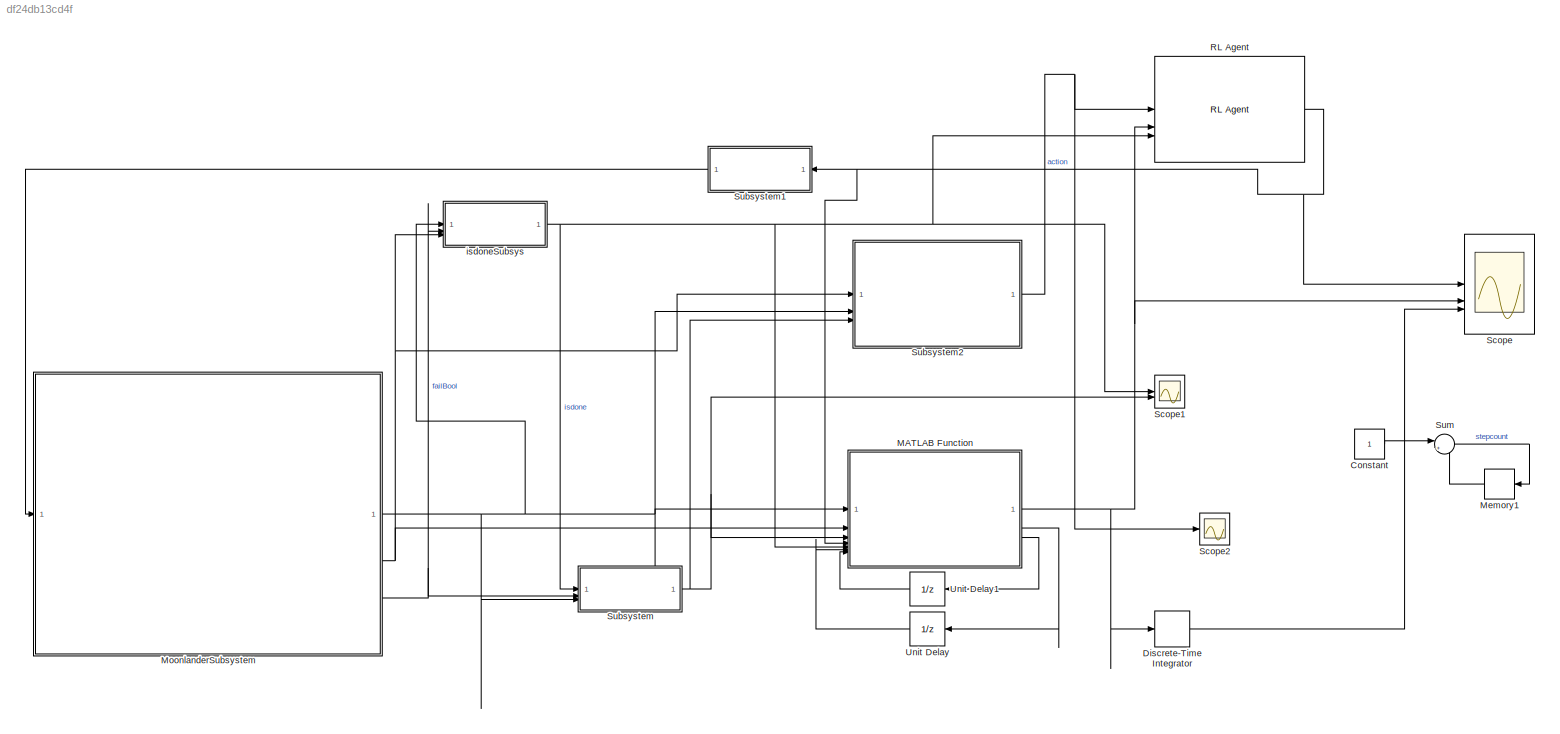
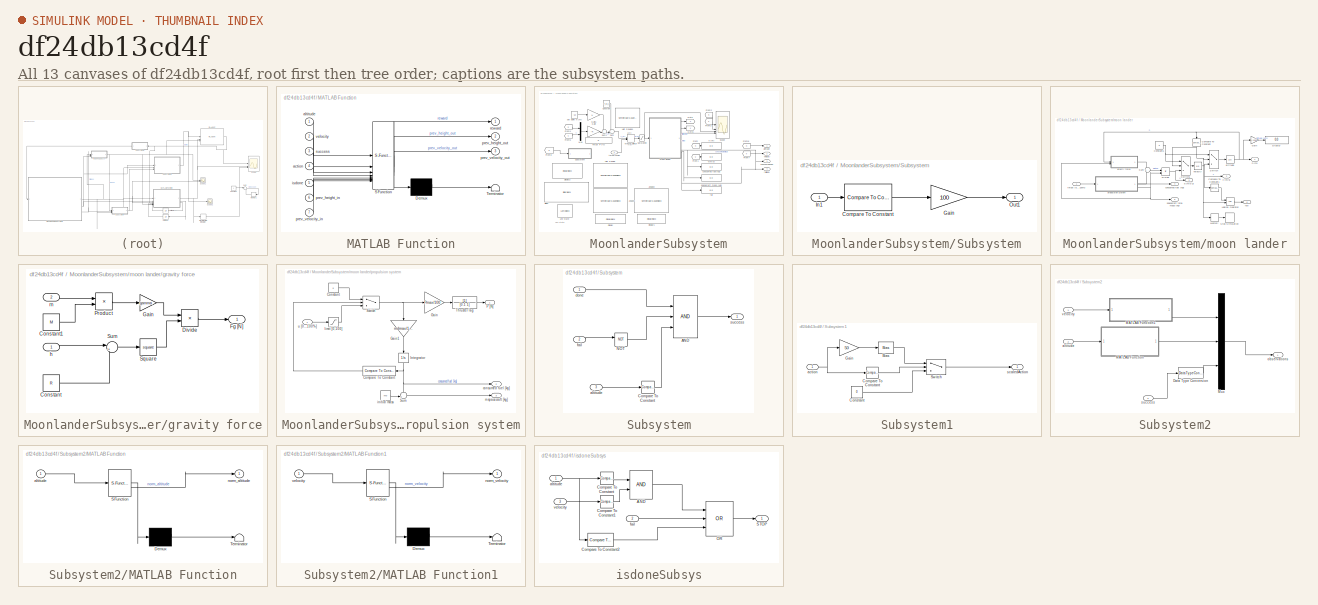
[diagram: thumbnail index - all 13 canvases of the model, root first then tree order]
MODEL slx_df24db13cd4f
KIND model
CONFIG AbsTol = auto
CONFIG EnableMultiTasking = off
CONFIG FixedStep = 0.1
CONFIG MaxStep = auto
CONFIG MinStep = auto
CONFIG RelTol = 1e-3
CONFIG SampleTimeConstraint = Unconstrained
CONFIG SolverName = ode2
CONFIG StartTime = 0.0
CONFIG StopTime = Tf
BLOCK [Constant] Constant
BLOCK [DiscreteIntegrator] Discrete-Time Integrator
  ICPrevOutput = DiscIntNeverNeededParam
  ICPrevScaledInput = DiscIntNeverNeededParam
  InitialConditionSetting = Auto
  SampleTime = -1
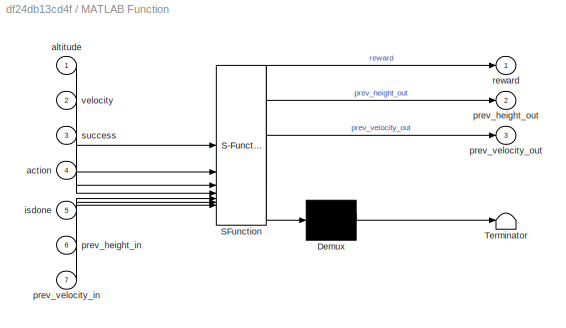
BLOCK [SubSystem] MATLAB Function
  ErrorFcn = Stateflow.Translate.translate
  PermitHierarchicalResolution = ExplicitOnly
  SFBlockType = MATLAB Function
  TreatAsAtomicUnit = on
BLOCK [Demux] MATLAB Function/ Demux 
  Outputs = 1
BLOCK [S-Function] MATLAB Function/ SFunction 
  EnableBusSupport = off
  FunctionName = sf_sfun
  PortCounts = [7 4]
  SFcnIsStateOwnerBlock = off
  SFunctionDeploymentMode = off
  Tag = Stateflow S-Function 2
BLOCK [Terminator] MATLAB Function/ Terminator 
BLOCK [Inport] MATLAB Function/action
  Port = 4
BLOCK [Inport] MATLAB Function/altitude
BLOCK [Inport] MATLAB Function/isdone
  Port = 5
BLOCK [Inport] MATLAB Function/prev_height_in
  Port = 6
BLOCK [Outport] MATLAB Function/prev_height_out
  Port = 2
BLOCK [Inport] MATLAB Function/prev_velocity_in
  Port = 7
BLOCK [Outport] MATLAB Function/prev_velocity_out
  Port = 3
BLOCK [Outport] MATLAB Function/reward
BLOCK [Inport] MATLAB Function/success
  Port = 3
BLOCK [Inport] MATLAB Function/velocity
  Port = 2
BLOCK [Memory] Memory1
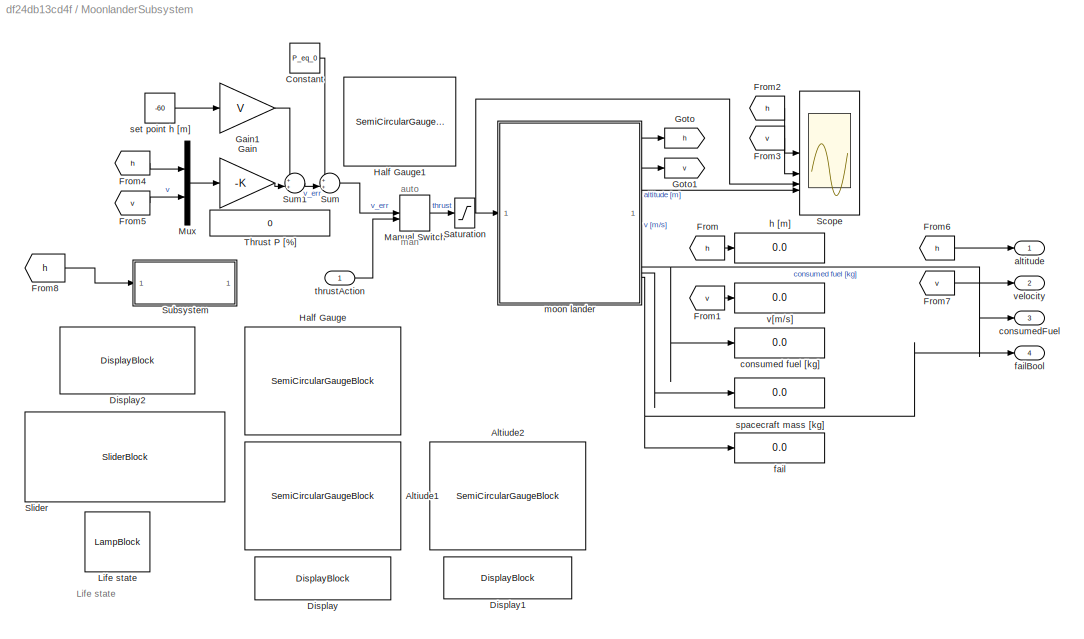
BLOCK [SubSystem] MoonlanderSubsystem
BLOCK [SemiCircularGaugeBlock] MoonlanderSubsystem/Altiude1
  ScaleMax = 200
BLOCK [SemiCircularGaugeBlock] MoonlanderSubsystem/Altiude2
  ScaleMax = 20
  ScaleMin = -120
BLOCK [Constant] MoonlanderSubsystem/Constant
  Value = P_eq_0
BLOCK [DisplayBlock] MoonlanderSubsystem/Display
  Format = Integer
  GridColor = [0.502, 0.502, 0.502]
  LabelPosition = Bottom
  Transparency = 1
BLOCK [DisplayBlock] MoonlanderSubsystem/Display1
  Format = Integer
  GridColor = [0.502, 0.502, 0.502]
  LabelPosition = Bottom
  Transparency = 1
BLOCK [DisplayBlock] MoonlanderSubsystem/Display2
  Format = Integer
  GridColor = [0.502, 0.502, 0.502]
  LabelPosition = Bottom
  Transparency = 1
BLOCK [From] MoonlanderSubsystem/From
  GotoTag = h
BLOCK [From] MoonlanderSubsystem/From1
  GotoTag = v
BLOCK [From] MoonlanderSubsystem/From2
  GotoTag = h
BLOCK [From] MoonlanderSubsystem/From3
  GotoTag = v
BLOCK [From] MoonlanderSubsystem/From4
  GotoTag = h
BLOCK [From] MoonlanderSubsystem/From5
  GotoTag = v
BLOCK [From] MoonlanderSubsystem/From6
  GotoTag = h
BLOCK [From] MoonlanderSubsystem/From7
  GotoTag = v
BLOCK [From] MoonlanderSubsystem/From8
  GotoTag = h
BLOCK [Gain] MoonlanderSubsystem/Gain
  Gain = -K
  Multiplication = Matrix(K*u)
BLOCK [Gain] MoonlanderSubsystem/Gain1
  Gain = V
  Multiplication = Matrix(K*u)
BLOCK [Goto] MoonlanderSubsystem/Goto
  GotoTag = h
BLOCK [Goto] MoonlanderSubsystem/Goto1
  GotoTag = v
BLOCK [SemiCircularGaugeBlock] MoonlanderSubsystem/Half Gauge
  ScaleMax = 10
BLOCK [SemiCircularGaugeBlock] MoonlanderSubsystem/Half Gauge1
BLOCK [LampBlock] MoonlanderSubsystem/Life state
  DefaultColor = [150.0, 150.0, 150.0]
  LabelPosition = Hide
BLOCK [ManualSwitch] MoonlanderSubsystem/Manual Switch
  CurrentSetting = 0
BLOCK [Mux] MoonlanderSubsystem/Mux
  DisplayOption = bar
  Inputs = 2
BLOCK [Saturate] MoonlanderSubsystem/Saturation
  LowerLimit = 0
  UpperLimit = 100
BLOCK [Scope] MoonlanderSubsystem/Scope
  ActiveDisplayYMaximum = 11249.997761879704
  ActiveDisplayYMinimum = -1249.97985691733
  Floating = off
  GraphicalSettings = {"Style":{"BackgroundColor":[1,1,1],"AxesColor":[1,1,1],"LabelsColor":[0,0,0],"PreserveColors":false,"Visible":[true,true,true,true,true,true,true],"LineStyle":["-","-","-","-","-","-","-"],"LineWidth":[2,2,2,1,1.5,1.5,1.5],"BarWidth":[0.9,0.9,0.9,0.9,0.9,0.9,0.9],"LineColor":[[0,0.4980392156862745,0],[0,0,1],[1,0,0],[0.8509803921568627,0.3254901960784314,0.09803921568627451],[0.5215686274509804,0...<+3414ch>
  LayoutDimensionsString = [2 2]
  MultipleDisplayCache = [{"MaxYLimMag":10,"MaxYLimReal":11249.997761879704,"MinYLimMag":0,"MinYLimReal":-1249.97985691733,"PlotAsMagnitudePhase":false,"ShowGrid":true,"ShowLegend":false,"Title":"altitude","YLabel":"m"},{"MaxYLimMag":10,"MaxYLimReal":18.097537681998762,"MinYLimMag":0,"MinYLimReal":-162.8778391379889,"PlotAsMagnitudePhase":false,"ShowGrid":true,"ShowLegend":false,"Title":"velocity","YLabel":"m/s"},{"MaxYLi...<+381ch>
  NumInputPorts = 4
  ScopeFrameLocation = window
  TimeSpan = 80
  TimeSpanOverrunAction = Scroll
  Title = altitude
  Visible = on
  WasSavedAsWebScope = on
  WindowPosition = [994.000000,1.000000,927.000000,1011.000000,]
  YLabel = m
BLOCK [SliderBlock] MoonlanderSubsystem/Slider
BLOCK [SubSystem] MoonlanderSubsystem/Subsystem
BLOCK [Reference] MoonlanderSubsystem/Subsystem/Compare To Constant  REF=simulink/Logic and Bit
Operations/Compare
To Constant
  SourceBlock = simulink/Logic and Bit\nOperations/Compare\nTo Constant
  SourceType = Compare To Constant
BLOCK [Gain] MoonlanderSubsystem/Subsystem/Gain
  Gain = 100
BLOCK [Inport] MoonlanderSubsystem/Subsystem/In1
BLOCK [Outport] MoonlanderSubsystem/Subsystem/Out1
BLOCK [Sum] MoonlanderSubsystem/Sum
  Inputs = ++|
BLOCK [Sum] MoonlanderSubsystem/Sum1
  Inputs = ++|
BLOCK [Constant] MoonlanderSubsystem/Thrust P [%]
  Value = 0
BLOCK [Outport] MoonlanderSubsystem/altitude
BLOCK [Display] MoonlanderSubsystem/consumed fuel [kg]
  Decimation = 1
BLOCK [Outport] MoonlanderSubsystem/consumedFuel
  Port = 3
BLOCK [Display] MoonlanderSubsystem/fail
  Decimation = 1
BLOCK [Outport] MoonlanderSubsystem/failBool
  Port = 4
BLOCK [Display] MoonlanderSubsystem/h [m]
  Decimation = 1
BLOCK [SubSystem] MoonlanderSubsystem/moon lander
BLOCK [Reference] MoonlanderSubsystem/moon lander/Compare To Constant  REF=simulink/Logic and Bit
Operations/Compare
To Constant
  NameLocation = left
  SourceBlock = simulink/Logic and Bit\nOperations/Compare\nTo Constant
  SourceType = Compare To Constant
BLOCK [Reference] MoonlanderSubsystem/moon lander/Compare To Constant1  REF=simulink/Logic and Bit
Operations/Compare
To Constant
  SourceBlock = simulink/Logic and Bit\nOperations/Compare\nTo Constant
  SourceType = Compare To Constant
BLOCK [Constant] MoonlanderSubsystem/moon lander/Constant1
  Value = 0
BLOCK [Display] MoonlanderSubsystem/moon lander/Display
  Decimation = 1
BLOCK [Product] MoonlanderSubsystem/moon lander/Divide
  Inputs = */
BLOCK [Gain] MoonlanderSubsystem/moon lander/Gain
  Gain = 1/1000
BLOCK [Logic] MoonlanderSubsystem/moon lander/Logical Operator
  AllPortsSameDT = off
  OutDataTypeStr = boolean
BLOCK [Memory] MoonlanderSubsystem/moon lander/Memory
  Commented = on
BLOCK [Stop] MoonlanderSubsystem/moon lander/Stop Simulation
  Commented = on
BLOCK [Sum] MoonlanderSubsystem/moon lander/Sum
  Inputs = -+
BLOCK [Switch] MoonlanderSubsystem/moon lander/Switch
  Criteria = u2 > Threshold
  InputSameDT = off
  SaturateOnIntegerOverflow = off
BLOCK [Switch] MoonlanderSubsystem/moon lander/Switch1
  Criteria = u2 > Threshold
  InputSameDT = off
  SaturateOnIntegerOverflow = off
BLOCK [Outport] MoonlanderSubsystem/moon lander/a [m//s^2]
  Port = 3
BLOCK [Integrator] MoonlanderSubsystem/moon lander/altitude
  InitialCondition = h0
BLOCK [Outport] MoonlanderSubsystem/moon lander/consumed fuel [kg]
  Port = 4
BLOCK [Outport] MoonlanderSubsystem/moon lander/fail
  Port = 6
BLOCK [SubSystem] MoonlanderSubsystem/moon lander/gravity force
BLOCK [Constant] MoonlanderSubsystem/moon lander/gravity force/Constant
  Value = R
BLOCK [Constant] MoonlanderSubsystem/moon lander/gravity force/Constant1
  Value = M
BLOCK [Product] MoonlanderSubsystem/moon lander/gravity force/Divide
  Inputs = */
BLOCK [Outport] MoonlanderSubsystem/moon lander/gravity force/Fg [N]
BLOCK [Gain] MoonlanderSubsystem/moon lander/gravity force/Gain
  Gain = gamma
BLOCK [Product] MoonlanderSubsystem/moon lander/gravity force/Product
BLOCK [Math] MoonlanderSubsystem/moon lander/gravity force/Square
  Operator = square
BLOCK [Sum] MoonlanderSubsystem/moon lander/gravity force/Sum
  Inputs = |++
BLOCK [Inport] MoonlanderSubsystem/moon lander/gravity force/h
BLOCK [Inport] MoonlanderSubsystem/moon lander/gravity force/m
  Port = 2
BLOCK [Outport] MoonlanderSubsystem/moon lander/h [m]
BLOCK [SubSystem] MoonlanderSubsystem/moon lander/propulsion system
BLOCK [Reference] MoonlanderSubsystem/moon lander/propulsion system/Compare To Constant  REF=simulink/Logic and Bit
Operations/Compare
To Constant
  SourceBlock = simulink/Logic and Bit\nOperations/Compare\nTo Constant
  SourceType = Compare To Constant
BLOCK [Constant] MoonlanderSubsystem/moon lander/propulsion system/Constant
  Value = 0
BLOCK [Gain] MoonlanderSubsystem/moon lander/propulsion system/Gain
  Gain = Pmax/100
BLOCK [Gain] MoonlanderSubsystem/moon lander/propulsion system/Gain1
  Gain = mdmax/100
  NameLocation = left
BLOCK [Integrator] MoonlanderSubsystem/moon lander/propulsion system/Integrator
  LowerSaturationLimit = 0
  NameLocation = left
  UpperSaturationLimit = m0_fuel
BLOCK [Outport] MoonlanderSubsystem/moon lander/propulsion system/P [N]
BLOCK [Sum] MoonlanderSubsystem/moon lander/propulsion system/Sum
  Inputs = -+|
BLOCK [Switch] MoonlanderSubsystem/moon lander/propulsion system/Switch
  Criteria = u2 > Threshold
  InputSameDT = off
  SaturateOnIntegerOverflow = off
BLOCK [TransferFcn] MoonlanderSubsystem/moon lander/propulsion system/Thruster lag
  Denominator = [0.1 1]
BLOCK [Outport] MoonlanderSubsystem/moon lander/propulsion system/consumed fuel [kg]
  Port = 2
BLOCK [Constant] MoonlanderSubsystem/moon lander/propulsion system/initial mass
  Value = m0
BLOCK [Saturate] MoonlanderSubsystem/moon lander/propulsion system/limit [0,100]
  LowerLimit = 0
  UpperLimit = 100
BLOCK [Outport] MoonlanderSubsystem/moon lander/propulsion system/m spacecraft [kg]
  Port = 3
BLOCK [Inport] MoonlanderSubsystem/moon lander/propulsion system/u [0...100%]
BLOCK [Outport] MoonlanderSubsystem/moon lander/spacecraft total mass [kg]
  Port = 5
BLOCK [Inport] MoonlanderSubsystem/moon lander/thrust [0...100%]
BLOCK [Outport] MoonlanderSubsystem/moon lander/v [m//s]
  Port = 2
BLOCK [Integrator] MoonlanderSubsystem/moon lander/velocity
BLOCK [Constant] MoonlanderSubsystem/set point h [m]
  Value = -60
BLOCK [Display] MoonlanderSubsystem/spacecraft mass [kg]
  Decimation = 1
BLOCK [Inport] MoonlanderSubsystem/thrustAction
BLOCK [Display] MoonlanderSubsystem/v[m//s]
  Decimation = 1
BLOCK [Outport] MoonlanderSubsystem/velocity
  Port = 2
BLOCK [Reference] RL Agent  REF=rllib/RL Agent
  SourceBlock = rllib/RL Agent
  SourceType = RL Agent
BLOCK [Scope] Scope
  ActiveDisplayYMaximum = 1.217665895819664
  ActiveDisplayYMinimum = -1.2345805019140244
  DataLogging = on
  DataLoggingVariableName = ScopeData1
  Floating = off
  GraphicalSettings = {"Style":{"BackgroundColor":[0.12941176470588237,0.12941176470588237,0.12941176470588237],"AxesColor":[0.07058823529411765,0.07058823529411765,0.07058823529411765],"LabelsColor":[0.8509803921568627,0.8509803921568627,0.8509803921568627],"PreserveColors":false,"Visible":[true,true,true,true,true,true,true],"LineStyle":["-","-","-","-","-","-","-"],"LineWidth":[1.5,1.5,1.5,1.5,1.5,1.5,1.5],"BarWidth...<+3736ch>
  LayoutDimensionsString = [2,2]
  MultipleDisplayCache = [{"MaxYLimMag":10,"MaxYLimReal":1.217665895819664,"MinYLimMag":0,"MinYLimReal":-1.2345805019140244,"PlotAsMagnitudePhase":false,"ShowGrid":true,"ShowLegend":true,"Title":"%<SignalLabel>","YLabel":""},{"MaxYLimMag":10,"MaxYLimReal":14.738737198603083,"MinYLimMag":0,"MinYLimReal":-35.718039686775924,"PlotAsMagnitudePhase":false,"ShowGrid":true,"ShowLegend":true,"Title":"%<SignalLabel>","YLabel":""},...<+396ch>
  NumInputPorts = 3
  OpenAtSimulationStart = on
  ScopeFrameLocation = window
  ShowLegend = on
  Visible = on
  WasSavedAsWebScope = on
  WindowPosition = [67.000000,197.000000,1012.000000,804.000000,]
BLOCK [Scope] Scope1
  ActiveDisplayYMaximum = 1
  ActiveDisplayYMinimum = -1
  DataLoggingVariableName = ScopeData2
  Floating = off
  GraphicalSettings = {"AxesScalingProperties":{"AlignXAxis":"Center","AlignYAxis":"Center","AutoScaleXAxisLimits":false,"AxesScaling":"Manual","AxesScalingNumUpdates":10,"ExpandOnly":true,"ScaleAxesLimitsAtStop":false,"XAxisDataRange":100,"YAxisDataRange":80},"DisplayProperties":{"ColorOrder":["auto","auto","auto","auto","auto","auto","auto","auto","auto","auto","auto","auto","auto","auto","auto","auto","auto","auto",...<+2272ch>
  LayoutDimensionsString = [2,1]
  MultipleDisplayCache = [{"MaxYLimMag":1,"MaxYLimReal":1,"MinYLimMag":0,"MinYLimReal":-1,"PlotAsMagnitudePhase":false,"ShowGrid":true,"ShowLegend":false,"Title":"%<SignalLabel>","YLabel":""},{"MaxYLimMag":1,"MaxYLimReal":0.95171276563709828,"MinYLimMag":0,"MinYLimReal":-0.61533956729981942,"PlotAsMagnitudePhase":false,"ShowGrid":true,"ShowLegend":false,"Title":"%<SignalLabel>","YLabel":""}]
  NumInputPorts = 2
  ScopeFrameLocation = window
  WasSavedAsWebScope = on
  WindowPosition = [680.000000,135.000000,612.000000,615.000000,]
BLOCK [Scope] Scope2
  ActiveDisplayYMaximum = 0.49992743023604069
  ActiveDisplayYMinimum = -1.1660135387910342
  DataLoggingVariableName = ScopeData3
  Floating = off
  GraphicalSettings = {"Style":{"BackgroundColor":[0.12941176470588237,0.12941176470588237,0.12941176470588237],"AxesColor":[0.07058823529411765,0.07058823529411765,0.07058823529411765],"LabelsColor":[0.8509803921568627,0.8509803921568627,0.8509803921568627],"PreserveColors":false,"Visible":[true,true,true],"LineStyle":["-","-","-"],"LineWidth":[1.5,1.5,1.5],"BarWidth":[0.9,0.9,0.9],"LineColor":["auto","auto","auto"],"...<+2125ch>
  MultipleDisplayCache = [{"MaxYLimMag":1.1660135387910342,"MaxYLimReal":0.49992743023604069,"MinYLimMag":0,"MinYLimReal":-1.1660135387910342,"PlotAsMagnitudePhase":false,"ShowGrid":true,"ShowLegend":false,"Title":"%<SignalLabel>","YLabel":""}]
  NumInputPorts = 1
  ScopeFrameLocation = window
  WasSavedAsWebScope = on
  WindowPosition = [680.000000,330.000000,560.000000,420.000000,]
BLOCK [SubSystem] Subsystem
BLOCK [Logic] Subsystem/AND
  AllPortsSameDT = off
  IconShape = distinctive
  Inputs = 3
  OutDataTypeStr = boolean
BLOCK [Reference] Subsystem/Compare To Constant  REF=simulink/Logic and Bit
Operations/Compare
To Constant
  SourceBlock = simulink/Logic and Bit\nOperations/Compare\nTo Constant
  SourceType = Compare To Constant
BLOCK [Logic] Subsystem/NOT
  AllPortsSameDT = off
  IconShape = distinctive
  Operator = NOT
  OutDataTypeStr = boolean
BLOCK [Inport] Subsystem/altitude
  Port = 3
BLOCK [Inport] Subsystem/done
BLOCK [Inport] Subsystem/fail
  Port = 2
BLOCK [Outport] Subsystem/success
BLOCK [SubSystem] Subsystem1
BLOCK [Bias] Subsystem1/Bias
  Bias = 50
  SaturateOnIntegerOverflow = off
BLOCK [Reference] Subsystem1/Compare To Constant  REF=simulink/Logic and Bit
Operations/Compare
To Constant
  SourceBlock = simulink/Logic and Bit\nOperations/Compare\nTo Constant
  SourceType = Compare To Constant
BLOCK [Constant] Subsystem1/Constant
  Value = 0
BLOCK [Gain] Subsystem1/Gain
  Gain = 50
BLOCK [Switch] Subsystem1/Switch
  Criteria = u2 > Threshold
  InputSameDT = off
  SaturateOnIntegerOverflow = off
BLOCK [Inport] Subsystem1/action
BLOCK [Outport] Subsystem1/scaledAction
BLOCK [SubSystem] Subsystem2
BLOCK [DataTypeConversion] Subsystem2/Data Type Conversion
  RndMeth = Floor
  SaturateOnIntegerOverflow = off
BLOCK [SubSystem] Subsystem2/MATLAB Function
  ErrorFcn = Stateflow.Translate.translate
  PermitHierarchicalResolution = ExplicitOnly
  SFBlockType = MATLAB Function
  TreatAsAtomicUnit = on
BLOCK [Demux] Subsystem2/MATLAB Function/ Demux 
  Outputs = 1
BLOCK [S-Function] Subsystem2/MATLAB Function/ SFunction 
  EnableBusSupport = off
  FunctionName = sf_sfun
  PortCounts = [1 2]
  SFcnIsStateOwnerBlock = off
  SFunctionDeploymentMode = off
  Tag = Stateflow S-Function 1
BLOCK [Terminator] Subsystem2/MATLAB Function/ Terminator 
BLOCK [Inport] Subsystem2/MATLAB Function/altitude
BLOCK [Outport] Subsystem2/MATLAB Function/norm_altitude
BLOCK [SubSystem] Subsystem2/MATLAB Function1
  ErrorFcn = Stateflow.Translate.translate
  PermitHierarchicalResolution = ExplicitOnly
  SFBlockType = MATLAB Function
  TreatAsAtomicUnit = on
BLOCK [Demux] Subsystem2/MATLAB Function1/ Demux 
  Outputs = 1
BLOCK [S-Function] Subsystem2/MATLAB Function1/ SFunction 
  EnableBusSupport = off
  FunctionName = sf_sfun
  PortCounts = [1 2]
  SFcnIsStateOwnerBlock = off
  SFunctionDeploymentMode = off
  Tag = Stateflow S-Function 3
BLOCK [Terminator] Subsystem2/MATLAB Function1/ Terminator 
BLOCK [Outport] Subsystem2/MATLAB Function1/norm_velocity
BLOCK [Inport] Subsystem2/MATLAB Function1/velocity
BLOCK [Mux] Subsystem2/Mux
  DisplayOption = bar
  Inputs = 3
BLOCK [Inport] Subsystem2/altitude
  Port = 2
BLOCK [Outport] Subsystem2/observations
BLOCK [Inport] Subsystem2/success
  Port = 3
BLOCK [Inport] Subsystem2/velocity
BLOCK [Sum] Sum
  Inputs = |++
BLOCK [UnitDelay] Unit Delay
  HasFrameUpgradeWarning = on
  SampleTime = -1
BLOCK [UnitDelay] Unit Delay1
  HasFrameUpgradeWarning = on
  SampleTime = -1
BLOCK [SubSystem] isdoneSubsys
BLOCK [Logic] isdoneSubsys/AND
  AllPortsSameDT = off
  IconShape = distinctive
  OutDataTypeStr = boolean
BLOCK [Reference] isdoneSubsys/Compare To Constant  REF=simulink/Logic and Bit
Operations/Compare
To Constant
  SourceBlock = simulink/Logic and Bit\nOperations/Compare\nTo Constant
  SourceType = Compare To Constant
BLOCK [Reference] isdoneSubsys/Compare To Constant1  REF=simulink/Logic and Bit
Operations/Compare
To Constant
  SourceBlock = simulink/Logic and Bit\nOperations/Compare\nTo Constant
  SourceType = Compare To Constant
BLOCK [Reference] isdoneSubsys/Compare To Constant2  REF=simulink/Logic and Bit
Operations/Compare
To Constant
  SourceBlock = simulink/Logic and Bit\nOperations/Compare\nTo Constant
  SourceType = Compare To Constant
BLOCK [Logic] isdoneSubsys/OR
  AllPortsSameDT = off
  IconShape = distinctive
  Inputs = 3
  Operator = OR
  OutDataTypeStr = boolean
BLOCK [Outport] isdoneSubsys/STOP
BLOCK [Inport] isdoneSubsys/altitude
BLOCK [Inport] isdoneSubsys/fail
  Port = 2
BLOCK [Inport] isdoneSubsys/velocity
  Port = 3
ANNOTATION MoonlanderSubsystem: Life state
ANNOTATION MoonlanderSubsystem: auto
ANNOTATION MoonlanderSubsystem: man
LINE Constant:1 -> Sum:1
LINE Discrete-Time Integrator:1 -> Scope:3
NET MATLAB Function:1 -> Discrete-Time Integrator:1, RL Agent:2, Scope:2
LINE MATLAB Function:2 -> Unit Delay:1
LINE MATLAB Function:3 -> Unit Delay1:1
LINE Memory1:1 -> Sum:2
LINE MoonlanderSubsystem/Constant:1 -> MoonlanderSubsystem/Sum:1
LINE MoonlanderSubsystem/From1:1 -> MoonlanderSubsystem/v[m//s]:1
LINE MoonlanderSubsystem/From2:1 -> MoonlanderSubsystem/Scope:1
LINE MoonlanderSubsystem/From3:1 -> MoonlanderSubsystem/Scope:2
LINE MoonlanderSubsystem/From4:1 -> MoonlanderSubsystem/Mux:1
LINE MoonlanderSubsystem/From5:1 -> MoonlanderSubsystem/Mux:2
LINE MoonlanderSubsystem/From6:1 -> MoonlanderSubsystem/altitude:1
LINE MoonlanderSubsystem/From7:1 -> MoonlanderSubsystem/velocity:1
LINE MoonlanderSubsystem/From8:1 -> MoonlanderSubsystem/Subsystem:1
LINE MoonlanderSubsystem/From:1 -> MoonlanderSubsystem/h [m]:1
LINE MoonlanderSubsystem/Gain1:1 -> MoonlanderSubsystem/Sum1:1
LINE MoonlanderSubsystem/Gain:1 -> MoonlanderSubsystem/Sum1:2
LINE MoonlanderSubsystem/Manual Switch:1 -> MoonlanderSubsystem/Saturation:1
LINE MoonlanderSubsystem/Mux:1 -> MoonlanderSubsystem/Gain:1
NET MoonlanderSubsystem/Saturation:1 -> MoonlanderSubsystem/Scope:3, MoonlanderSubsystem/moon lander:1
LINE MoonlanderSubsystem/Subsystem/Compare To Constant:1 -> MoonlanderSubsystem/Subsystem/Gain:1
LINE MoonlanderSubsystem/Subsystem/Gain:1 -> MoonlanderSubsystem/Subsystem/Out1:1
LINE MoonlanderSubsystem/Subsystem/In1:1 -> MoonlanderSubsystem/Subsystem/Compare To Constant:1
LINE MoonlanderSubsystem/Sum1:1 -> MoonlanderSubsystem/Sum:2
LINE MoonlanderSubsystem/Sum:1 -> MoonlanderSubsystem/Manual Switch:1
LINE MoonlanderSubsystem/moon lander/Compare To Constant1:1 -> MoonlanderSubsystem/moon lander/Logical Operator:1
NET MoonlanderSubsystem/moon lander/Compare To Constant:1 -> MoonlanderSubsystem/moon lander/Logical Operator:2, MoonlanderSubsystem/moon lander/Memory:1, MoonlanderSubsystem/moon lander/Switch1:2, MoonlanderSubsystem/moon lander/Switch:2
NET MoonlanderSubsystem/moon lander/Constant1:1 -> MoonlanderSubsystem/moon lander/Switch1:1, MoonlanderSubsystem/moon lander/Switch:1
NET MoonlanderSubsystem/moon lander/Divide:1 -> MoonlanderSubsystem/moon lander/Switch1:3, MoonlanderSubsystem/moon lander/a [m//s^2]:1
LINE MoonlanderSubsystem/moon lander/Gain:1 -> MoonlanderSubsystem/moon lander/Display:1
LINE MoonlanderSubsystem/moon lander/Logical Operator:1 -> MoonlanderSubsystem/moon lander/fail:1
LINE MoonlanderSubsystem/moon lander/Memory:1 -> MoonlanderSubsystem/moon lander/Stop Simulation:1
LINE MoonlanderSubsystem/moon lander/Sum:1 -> MoonlanderSubsystem/moon lander/Divide:1
LINE MoonlanderSubsystem/moon lander/Switch1:1 -> MoonlanderSubsystem/moon lander/velocity:1
LINE MoonlanderSubsystem/moon lander/Switch:1 -> MoonlanderSubsystem/moon lander/altitude:1
NET MoonlanderSubsystem/moon lander/altitude:1 -> MoonlanderSubsystem/moon lander/Compare To Constant:1, MoonlanderSubsystem/moon lander/Gain:1, MoonlanderSubsystem/moon lander/gravity force:1, MoonlanderSubsystem/moon lander/h [m]:1
LINE MoonlanderSubsystem/moon lander/gravity force/Constant1:1 -> MoonlanderSubsystem/moon lander/gravity force/Product:2
LINE MoonlanderSubsystem/moon lander/gravity force/Constant:1 -> MoonlanderSubsystem/moon lander/gravity force/Sum:2
LINE MoonlanderSubsystem/moon lander/gravity force/Divide:1 -> MoonlanderSubsystem/moon lander/gravity force/Fg [N]:1
LINE MoonlanderSubsystem/moon lander/gravity force/Gain:1 -> MoonlanderSubsystem/moon lander/gravity force/Divide:1
LINE MoonlanderSubsystem/moon lander/gravity force/Product:1 -> MoonlanderSubsystem/moon lander/gravity force/Gain:1
LINE MoonlanderSubsystem/moon lander/gravity force/Square:1 -> MoonlanderSubsystem/moon lander/gravity force/Divide:2
LINE MoonlanderSubsystem/moon lander/gravity force/Sum:1 -> MoonlanderSubsystem/moon lander/gravity force/Square:1
LINE MoonlanderSubsystem/moon lander/gravity force/h:1 -> MoonlanderSubsystem/moon lander/gravity force/Sum:1
LINE MoonlanderSubsystem/moon lander/gravity force/m:1 -> MoonlanderSubsystem/moon lander/gravity force/Product:1
LINE MoonlanderSubsystem/moon lander/gravity force:1 -> MoonlanderSubsystem/moon lander/Sum:1
LINE MoonlanderSubsystem/moon lander/propulsion system/Compare To Constant:1 -> MoonlanderSubsystem/moon lander/propulsion system/Switch:2
LINE MoonlanderSubsystem/moon lander/propulsion system/Constant:1 -> MoonlanderSubsystem/moon lander/propulsion system/Switch:1
LINE MoonlanderSubsystem/moon lander/propulsion system/Gain1:1 -> MoonlanderSubsystem/moon lander/propulsion system/Integrator:1
LINE MoonlanderSubsystem/moon lander/propulsion system/Gain:1 -> MoonlanderSubsystem/moon lander/propulsion system/Thruster lag:1
NET MoonlanderSubsystem/moon lander/propulsion system/Integrator:1 -> MoonlanderSubsystem/moon lander/propulsion system/Compare To Constant:1, MoonlanderSubsystem/moon lander/propulsion system/Sum:1, MoonlanderSubsystem/moon lander/propulsion system/consumed fuel [kg]:1
LINE MoonlanderSubsystem/moon lander/propulsion system/Sum:1 -> MoonlanderSubsystem/moon lander/propulsion system/m spacecraft [kg]:1
NET MoonlanderSubsystem/moon lander/propulsion system/Switch:1 -> MoonlanderSubsystem/moon lander/propulsion system/Gain1:1, MoonlanderSubsystem/moon lander/propulsion system/Gain:1
LINE MoonlanderSubsystem/moon lander/propulsion system/Thruster lag:1 -> MoonlanderSubsystem/moon lander/propulsion system/P [N]:1
LINE MoonlanderSubsystem/moon lander/propulsion system/initial mass:1 -> MoonlanderSubsystem/moon lander/propulsion system/Sum:2
LINE MoonlanderSubsystem/moon lander/propulsion system/limit [0,100]:1 -> MoonlanderSubsystem/moon lander/propulsion system/Switch:3
LINE MoonlanderSubsystem/moon lander/propulsion system/u [0...100%]:1 -> MoonlanderSubsystem/moon lander/propulsion system/limit [0,100]:1
LINE MoonlanderSubsystem/moon lander/propulsion system:1 -> MoonlanderSubsystem/moon lander/Sum:2
LINE MoonlanderSubsystem/moon lander/propulsion system:2 -> MoonlanderSubsystem/moon lander/consumed fuel [kg]:1
NET MoonlanderSubsystem/moon lander/propulsion system:3 -> MoonlanderSubsystem/moon lander/Divide:2, MoonlanderSubsystem/moon lander/gravity force:2, MoonlanderSubsystem/moon lander/spacecraft total mass [kg]:1
LINE MoonlanderSubsystem/moon lander/thrust [0...100%]:1 -> MoonlanderSubsystem/moon lander/propulsion system:1
NET MoonlanderSubsystem/moon lander/velocity:1 -> MoonlanderSubsystem/moon lander/Compare To Constant1:1, MoonlanderSubsystem/moon lander/Switch:3, MoonlanderSubsystem/moon lander/v [m//s]:1
LINE MoonlanderSubsystem/moon lander:1 -> MoonlanderSubsystem/Goto:1
LINE MoonlanderSubsystem/moon lander:2 -> MoonlanderSubsystem/Goto1:1
LINE MoonlanderSubsystem/moon lander:3 -> MoonlanderSubsystem/Scope:4
NET MoonlanderSubsystem/moon lander:4 -> MoonlanderSubsystem/consumed fuel [kg]:1, MoonlanderSubsystem/consumedFuel:1
LINE MoonlanderSubsystem/moon lander:5 -> MoonlanderSubsystem/spacecraft mass [kg]:1
NET MoonlanderSubsystem/moon lander:6 -> MoonlanderSubsystem/fail:1, MoonlanderSubsystem/failBool:1
LINE MoonlanderSubsystem/set point h [m]:1 -> MoonlanderSubsystem/Gain1:1
LINE MoonlanderSubsystem/thrustAction:1 -> MoonlanderSubsystem/Manual Switch:2
NET MoonlanderSubsystem:1 -> MATLAB Function:1, Subsystem2:2, Subsystem:3, isdoneSubsys:1
NET MoonlanderSubsystem:2 -> MATLAB Function:2, Subsystem2:1, isdoneSubsys:3
NET MoonlanderSubsystem:4 -> Subsystem:2, isdoneSubsys:2
NET RL Agent:1 -> MATLAB Function:4, Scope:1, Subsystem1:1
LINE Subsystem/AND:1 -> Subsystem/success:1
LINE Subsystem/Compare To Constant:1 -> Subsystem/AND:3
LINE Subsystem/NOT:1 -> Subsystem/AND:2
LINE Subsystem/altitude:1 -> Subsystem/Compare To Constant:1
LINE Subsystem/done:1 -> Subsystem/AND:1
LINE Subsystem/fail:1 -> Subsystem/NOT:1
LINE Subsystem1/Bias:1 -> Subsystem1/Switch:1
LINE Subsystem1/Compare To Constant:1 -> Subsystem1/Switch:2
LINE Subsystem1/Constant:1 -> Subsystem1/Switch:3
LINE Subsystem1/Gain:1 -> Subsystem1/Bias:1
LINE Subsystem1/Switch:1 -> Subsystem1/scaledAction:1
NET Subsystem1/action:1 -> Subsystem1/Compare To Constant:1, Subsystem1/Gain:1
LINE Subsystem1:1 -> MoonlanderSubsystem:1
LINE Subsystem2/Data Type Conversion:1 -> Subsystem2/Mux:3
LINE Subsystem2/MATLAB Function1:1 -> Subsystem2/Mux:1
LINE Subsystem2/MATLAB Function:1 -> Subsystem2/Mux:2
LINE Subsystem2/Mux:1 -> Subsystem2/observations:1
LINE Subsystem2/altitude:1 -> Subsystem2/MATLAB Function:1
LINE Subsystem2/success:1 -> Subsystem2/Data Type Conversion:1
LINE Subsystem2/velocity:1 -> Subsystem2/MATLAB Function1:1
NET Subsystem2:1 -> RL Agent:1, Scope2:1
NET Subsystem:1 -> MATLAB Function:3, Scope1:2, Subsystem2:3
LINE Sum:1 -> Memory1:1
LINE Unit Delay1:1 -> MATLAB Function:7
LINE Unit Delay:1 -> MATLAB Function:6
LINE isdoneSubsys/AND:1 -> isdoneSubsys/OR:1
LINE isdoneSubsys/Compare To Constant1:1 -> isdoneSubsys/AND:2
LINE isdoneSubsys/Compare To Constant2:1 -> isdoneSubsys/OR:3
LINE isdoneSubsys/Compare To Constant:1 -> isdoneSubsys/AND:1
LINE isdoneSubsys/OR:1 -> isdoneSubsys/STOP:1
NET isdoneSubsys/altitude:1 -> isdoneSubsys/Compare To Constant2:1, isdoneSubsys/Compare To Constant:1
LINE isdoneSubsys/fail:1 -> isdoneSubsys/OR:2
LINE isdoneSubsys/velocity:1 -> isdoneSubsys/Compare To Constant1:1
NET isdoneSubsys:1 -> MATLAB Function:5, RL Agent:3, Scope1:1, Subsystem:1
note: NET lines group one-source signal fan-out (src -> all destinations, sorted); 1:1 wires keep LINE
CHART Subsystem2/MATLAB Function states=1 transitions=1
  STATE_LABEL 'eML_blk_kernel()'
  STATE_LABEL 'SCRIPT:\nfunction norm_altitude = fcn(altitude)\n    \n    max_altitude = 15000;\n    min_altitude = 0;\n    \n    % normalize alt & vel [-1, 1]\n    norm_altitude = 2 * ((altitude - min_altitude) / (max_altitude - min_altitude)) - 1;\n\nend\n\n'
CHART MATLAB Function states=1 transitions=1
  STATE_LABEL 'eML_blk_kernel()'
  STATE_LABEL 'SCRIPT:\nfunction [reward, prev_height_out, prev_velocity_out]= rewardFcn(altitude, velocity, success, action, isdone, prev_height_in, prev_velocity_in)\n    \n    %max_altitude = 15000;\n    %min_altitude = 0;\n    %max_abs_velocity = 180;\n    %min_abs_velocity = -180;\n    threshold_height = 3500.2185;\n    reward = 0;\n    \n    % action reward\n    if altitude <= threshold_height\n        if action > 0\n ...<+1108ch>'
CHART Subsystem2/MATLAB Function1 states=1 transitions=1
  STATE_LABEL 'eML_blk_kernel()'
  STATE_LABEL 'SCRIPT:\nfunction norm_velocity = fcn(velocity)\n\n    max_abs_velocity = 180;\n    min_abs_velocity = -180;\n    \n    % normalize alt & vel [-1, 1]\n    norm_velocity = 2 * ((velocity - min_abs_velocity) / (max_abs_velocity - min_abs_velocity)) -1;\n\nend\n'
CHART  states=0 transitions=0
CHART  states=0 transitions=0
CHART  states=0 transitions=0
